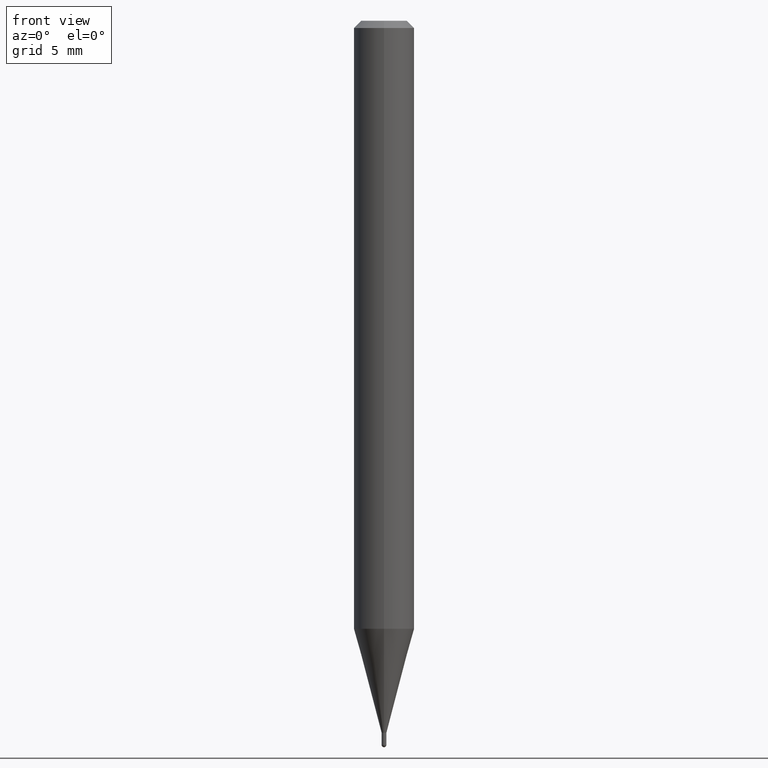
[diagram: clean part render]
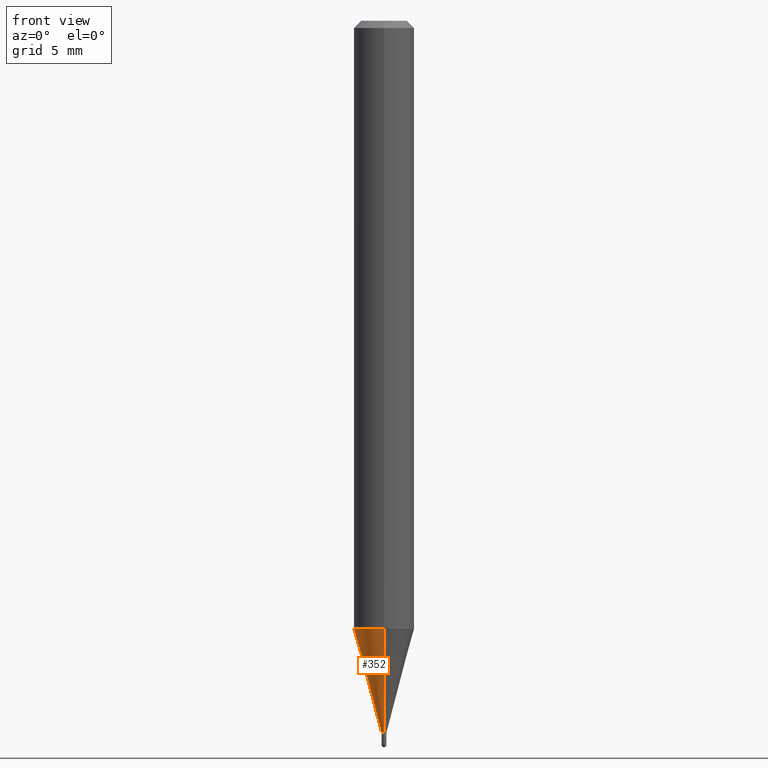
[diagram: same view with one face highlighted and labeled with its STEP entity id]
A machine part, front view. The second image highlights one B-rep face of the part: STEP entity #352.
In plain terms, the highlighted conical surface has half-angle 15 deg.
Its self-contained STEP definition (entity closure, byte-faithful):
#12 = CARTESIAN_POINT ( 'NONE',  ( 3.594362740794518312E-29, -5.133159806168883610E-15, -1.470000000000000195 ) ) ;
#17 = FACE_OUTER_BOUND ( 'NONE', #96, .T. ) ;
#26 = LINE ( 'NONE', #429, #147 ) ;
#33 = VERTEX_POINT ( 'NONE', #504 ) ;
#54 = VERTEX_POINT ( 'NONE', #234 ) ;
#64 = ORIENTED_EDGE ( 'NONE', *, *, #506, .T. ) ;
#66 = AXIS2_PLACEMENT_3D ( 'NONE', #264, #329, #452 ) ;
#96 = EDGE_LOOP ( 'NONE', ( #161, #64, #102, #255 ) ) ;
#102 = ORIENTED_EDGE ( 'NONE', *, *, #198, .T. ) ;
#110 = CARTESIAN_POINT ( 'NONE',  ( 3.594362740794518312E-29, -5.133159806168883610E-15, -1.470000000000000195 ) ) ;
#147 = VECTOR ( 'NONE', #226, 39.37007874015748143 ) ;
#161 = ORIENTED_EDGE ( 'NONE', *, *, #437, .F. ) ;
#183 = CONICAL_SURFACE ( 'NONE', #497, 0.004999999999999922042, 0.2617993877991574014 ) ;
#189 = DIRECTION ( 'NONE',  ( -6.982962677686265922E-15, -1.000000000000000000, 0.000000000000000000 ) ) ;
#198 = EDGE_CURVE ( 'NONE', #215, #54, #357, .T. ) ;
#210 = VECTOR ( 'NONE', #280, 39.37007874015748854 ) ;
#215 = VERTEX_POINT ( 'NONE', #286 ) ;
#226 = DIRECTION ( 'NONE',  ( 1.839019923739649225E-15, 0.2588190451025318417, 0.9659258262890653146 ) ) ;
#234 = CARTESIAN_POINT ( 'NONE',  ( -4.364351673553610024E-16, -0.06250000000000439926, -1.255407078564795942 ) ) ;
#242 = CIRCLE ( 'NONE', #442, 0.004999999999999922042 ) ;
#252 = DIRECTION ( 'NONE',  ( -2.445144721628923764E-29, 3.491945446373389387E-15, 1.000000000000000000 ) ) ;
#255 = ORIENTED_EDGE ( 'NONE', *, *, #361, .F. ) ;
#264 = CARTESIAN_POINT ( 'NONE',  ( 3.069651991648299295E-29, -4.383813031339259395E-15, -1.255407078564796164 ) ) ;
#280 = DIRECTION ( 'NONE',  ( -1.807323732225378260E-15, -0.2588190451025250693, 0.9659258262890670910 ) ) ;
#286 = CARTESIAN_POINT ( 'NONE',  ( -3.491481338839484381E-17, -0.005000000000005055088, -1.470000000000000195 ) ) ;
#292 = VERTEX_POINT ( 'NONE', #378 ) ;
#325 = CARTESIAN_POINT ( 'NONE',  ( -3.491481338839484381E-17, -0.005000000000005055088, -1.470000000000000195 ) ) ;
#329 = DIRECTION ( 'NONE',  ( -2.445144721628923764E-29, 3.491945446373389387E-15, 1.000000000000000000 ) ) ;
#352 = ADVANCED_FACE ( 'NONE', ( #17 ), #183, .T. ) ;
#357 = LINE ( 'NONE', #325, #210 ) ;
#361 = EDGE_CURVE ( 'NONE', #292, #54, #449, .T. ) ;
#378 = CARTESIAN_POINT ( 'NONE',  ( 4.440892098500931845E-16, 0.06249999999999560074, -1.255407078564796608 ) ) ;
#387 = DIRECTION ( 'NONE',  ( -2.445144721628923764E-29, 3.491945446373389387E-15, 1.000000000000000000 ) ) ;
#429 = CARTESIAN_POINT ( 'NONE',  ( 3.552713678804039168E-17, 0.004999999999994788995, -1.470000000000000195 ) ) ;
#437 = EDGE_CURVE ( 'NONE', #33, #292, #26, .T. ) ;
#442 = AXIS2_PLACEMENT_3D ( 'NONE', #110, #387, #189 ) ;
#449 = CIRCLE ( 'NONE', #66, 0.06250000000000000000 ) ;
#452 = DIRECTION ( 'NONE',  ( -6.982962677686265922E-15, -1.000000000000000000, 4.370956789862821150E-15 ) ) ;
#454 = DIRECTION ( 'NONE',  ( -6.982962677686265922E-15, -1.000000000000000000, 0.000000000000000000 ) ) ;
#497 = AXIS2_PLACEMENT_3D ( 'NONE', #12, #252, #454 ) ;
#504 = CARTESIAN_POINT ( 'NONE',  ( 2.398081733190669607E-16, 0.004999999999994788995, -1.470000000000000195 ) ) ;
#506 = EDGE_CURVE ( 'NONE', #33, #215, #242, .T. ) ;